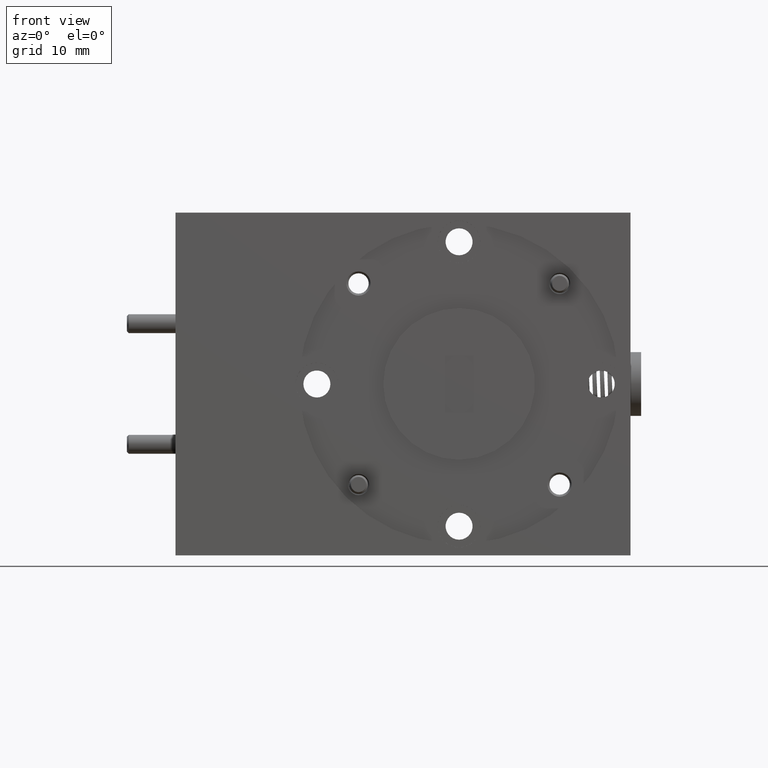
[diagram: clean part render]
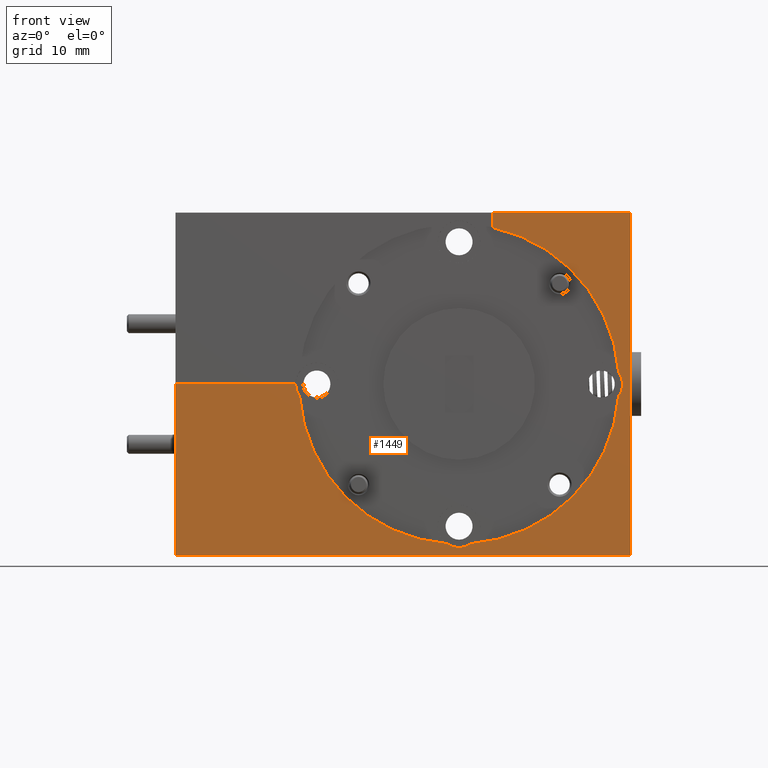
[diagram: same view with one face highlighted and labeled with its STEP entity id]
A machine part, front view. The second image highlights one B-rep face of the part: STEP entity #1449.
In plain terms, the highlighted planar face has unit normal (0, 1, 0).
Its self-contained STEP definition (entity closure, byte-faithful):
#192 = CARTESIAN_POINT ( 'NONE',  ( 0.4090450000000002700, -0.5649999999999999500, -0.04034337585031807400 ) ) ;
#217 = VERTEX_POINT ( 'NONE', #2755 ) ;
#246 = DIRECTION ( 'NONE',  ( -0.0000000000000000000, -0.0000000000000000000, -1.000000000000000000 ) ) ;
#464 = VERTEX_POINT ( 'NONE', #5726 ) ;
#688 = DIRECTION ( 'NONE',  ( 0.0000000000000000000, 0.0000000000000000000, -1.000000000000000000 ) ) ;
#953 = EDGE_CURVE ( 'NONE', #15122, #464, #16117, .T. ) ;
#1023 = AXIS2_PLACEMENT_3D ( 'NONE', #4147, #6903, #15198 ) ;
#1221 = DIRECTION ( 'NONE',  ( 0.0000000000000000000, 1.208782298081532700E-016, -1.000000000000000000 ) ) ;
#1271 = EDGE_CURVE ( 'NONE', #3174, #1623, #17130, .T. ) ;
#1397 = ORIENTED_EDGE ( 'NONE', *, *, #16337, .F. ) ;
#1449 = ADVANCED_FACE ( 'NONE', ( #9045 ), #17376, .F. ) ;
#1539 = ORIENTED_EDGE ( 'NONE', *, *, #3060, .F. ) ;
#1623 = VERTEX_POINT ( 'NONE', #8350 ) ;
#1685 = CARTESIAN_POINT ( 'NONE',  ( 1.460955000000000000, -0.5649999999999999500, 0.04034337585031770600 ) ) ;
#1728 = LINE ( 'NONE', #2541, #10920 ) ;
#1887 = DIRECTION ( 'NONE',  ( 0.0000000000000000000, 0.0000000000000000000, -1.000000000000000000 ) ) ;
#2201 = EDGE_CURVE ( 'NONE', #1623, #16250, #6027, .T. ) ;
#2245 = LINE ( 'NONE', #5926, #10604 ) ;
#2370 = ORIENTED_EDGE ( 'NONE', *, *, #14884, .F. ) ;
#2467 = VERTEX_POINT ( 'NONE', #11592 ) ;
#2541 = CARTESIAN_POINT ( 'NONE',  ( 1.500000000000000200, -0.5650000000000001700, 0.5649999999999997200 ) ) ;
#2613 = VERTEX_POINT ( 'NONE', #17426 ) ;
#2645 = LINE ( 'NONE', #5174, #16760 ) ;
#2755 = CARTESIAN_POINT ( 'NONE',  ( 0.8946566241496823900, -0.5649999999999999500, -0.5259549999999998400 ) ) ;
#2857 = EDGE_CURVE ( 'NONE', #15033, #2613, #13492, .T. ) ;
#3060 = EDGE_CURVE ( 'NONE', #6665, #217, #12631, .T. ) ;
#3161 = EDGE_CURVE ( 'NONE', #6595, #14634, #1728, .T. ) ;
#3174 = VERTEX_POINT ( 'NONE', #11026 ) ;
#3314 = AXIS2_PLACEMENT_3D ( 'NONE', #10655, #12096, #14658 ) ;
#3619 = ORIENTED_EDGE ( 'NONE', *, *, #13398, .T. ) ;
#3675 = AXIS2_PLACEMENT_3D ( 'NONE', #16726, #14080, #1887 ) ;
#3906 = VERTEX_POINT ( 'NONE', #7852 ) ;
#3934 = ORIENTED_EDGE ( 'NONE', *, *, #2201, .F. ) ;
#4147 = CARTESIAN_POINT ( 'NONE',  ( 1.403750000000000100, -0.5649999999999999500, 0.0000000000000000000 ) ) ;
#4160 = DIRECTION ( 'NONE',  ( 0.0000000000000000000, 0.0000000000000000000, -1.000000000000000000 ) ) ;
#4720 = DIRECTION ( 'NONE',  ( 0.0000000000000000000, -1.000000000000000000, 0.0000000000000000000 ) ) ;
#4755 = AXIS2_PLACEMENT_3D ( 'NONE', #15588, #4720, #688 ) ;
#5129 = CARTESIAN_POINT ( 'NONE',  ( 1.044999999999999900, -0.5649999999999999500, -0.5649999999999999500 ) ) ;
#5174 = CARTESIAN_POINT ( 'NONE',  ( 0.1600000000000000000, -0.5649999999999999500, -0.5649999999999999500 ) ) ;
#5256 = DIRECTION ( 'NONE',  ( -0.0000000000000000000, 1.208782298081532700E-016, -1.000000000000000000 ) ) ;
#5564 = CARTESIAN_POINT ( 'NONE',  ( 0.9350000000000002800, -0.5649999999999999500, -0.4687500000000000000 ) ) ;
#5704 = CIRCLE ( 'NONE', #4755, 0.07000000000000013200 ) ;
#5726 = CARTESIAN_POINT ( 'NONE',  ( 1.044999999999999900, -0.5649999999999999500, 0.5159033339686806000 ) ) ;
#5870 = DIRECTION ( 'NONE',  ( -1.000000000000000000, -0.0000000000000000000, -0.0000000000000000000 ) ) ;
#5926 = CARTESIAN_POINT ( 'NONE',  ( 1.274999999999999900, -0.5650000000000001700, 0.5649999999999997200 ) ) ;
#6027 = CIRCLE ( 'NONE', #1023, 0.06999999999999999300 ) ;
#6331 = ORIENTED_EDGE ( 'NONE', *, *, #2857, .T. ) ;
#6595 = VERTEX_POINT ( 'NONE', #12155 ) ;
#6665 = VERTEX_POINT ( 'NONE', #192 ) ;
#6735 = CARTESIAN_POINT ( 'NONE',  ( 0.9350000000000001600, -0.5649999999999999500, 0.0000000000000000000 ) ) ;
#6864 = CIRCLE ( 'NONE', #3675, 0.07000000000000000700 ) ;
#6903 = DIRECTION ( 'NONE',  ( 0.0000000000000000000, -1.000000000000000000, 0.0000000000000000000 ) ) ;
#6974 = CARTESIAN_POINT ( 'NONE',  ( 0.0000000000000000000, -0.5649999999999999500, -0.5649999999999999500 ) ) ;
#7595 = CIRCLE ( 'NONE', #7837, 0.07000000000000000700 ) ;
#7613 = CIRCLE ( 'NONE', #12069, 0.5274999999999998600 ) ;
#7837 = AXIS2_PLACEMENT_3D ( 'NONE', #5564, #8356, #13848 ) ;
#7852 = CARTESIAN_POINT ( 'NONE',  ( 0.9350000000000002800, -0.5649999999999999500, -0.5387500000000000600 ) ) ;
#8123 = ORIENTED_EDGE ( 'NONE', *, *, #3161, .F. ) ;
#8350 = CARTESIAN_POINT ( 'NONE',  ( 1.460955000000000000, -0.5649999999999999500, -0.04034337585031770600 ) ) ;
#8356 = DIRECTION ( 'NONE',  ( 0.0000000000000000000, -1.000000000000000000, 0.0000000000000000000 ) ) ;
#8589 = CARTESIAN_POINT ( 'NONE',  ( 0.9350000000000001600, -0.5649999999999999500, 0.0000000000000000000 ) ) ;
#8747 = LINE ( 'NONE', #6974, #10451 ) ;
#8816 = DIRECTION ( 'NONE',  ( 0.0000000000000000000, -1.000000000000000000, 0.0000000000000000000 ) ) ;
#8882 = DIRECTION ( 'NONE',  ( -1.000000000000000000, -0.0000000000000000000, -0.0000000000000000000 ) ) ;
#9045 = FACE_OUTER_BOUND ( 'NONE', #12562, .T. ) ;
#9533 = ORIENTED_EDGE ( 'NONE', *, *, #15961, .F. ) ;
#9603 = DIRECTION ( 'NONE',  ( 0.0000000000000000000, -1.000000000000000000, 0.0000000000000000000 ) ) ;
#9838 = CARTESIAN_POINT ( 'NONE',  ( 0.3962500000000001000, -0.5649999999999999500, -1.516480271171051900E-032 ) ) ;
#10191 = EDGE_CURVE ( 'NONE', #14634, #2467, #2645, .T. ) ;
#10451 = VECTOR ( 'NONE', #246, 39.37007874015748100 ) ;
#10604 = VECTOR ( 'NONE', #5870, 39.37007874015748100 ) ;
#10655 = CARTESIAN_POINT ( 'NONE',  ( 0.1600000000000000000, -0.5649999999999999500, -0.5649999999999999500 ) ) ;
#10877 = ORIENTED_EDGE ( 'NONE', *, *, #1271, .F. ) ;
#10920 = VECTOR ( 'NONE', #1221, 39.37007874015748100 ) ;
#11026 = CARTESIAN_POINT ( 'NONE',  ( 0.9753433758503181600, -0.5649999999999999500, -0.5259549999999998400 ) ) ;
#11219 = ORIENTED_EDGE ( 'NONE', *, *, #953, .T. ) ;
#11501 = CARTESIAN_POINT ( 'NONE',  ( 1.500000000000000200, -0.5649999999999999500, -0.5649999999999999500 ) ) ;
#11592 = CARTESIAN_POINT ( 'NONE',  ( 0.0000000000000000000, -0.5649999999999999500, -0.5649999999999999500 ) ) ;
#11751 = ORIENTED_EDGE ( 'NONE', *, *, #12883, .F. ) ;
#11993 = VECTOR ( 'NONE', #8882, 39.37007874015748100 ) ;
#12069 = AXIS2_PLACEMENT_3D ( 'NONE', #6735, #14973, #4160 ) ;
#12096 = DIRECTION ( 'NONE',  ( 0.0000000000000000000, 1.000000000000000000, 0.0000000000000000000 ) ) ;
#12155 = CARTESIAN_POINT ( 'NONE',  ( 1.500000000000000200, -0.5650000000000001700, 0.5649999999999997200 ) ) ;
#12336 = CARTESIAN_POINT ( 'NONE',  ( 0.9350000000000001600, -0.5649999999999999500, 0.0000000000000000000 ) ) ;
#12562 = EDGE_LOOP ( 'NONE', ( #1539, #1397, #6331, #3619, #16418, #8123, #16543, #11219, #2370, #3934, #10877, #9533, #11751 ) ) ;
#12631 = CIRCLE ( 'NONE', #16650, 0.5274999999999998600 ) ;
#12698 = CARTESIAN_POINT ( 'NONE',  ( 1.044999999999999900, -0.5650000000000001700, 0.5649999999999997200 ) ) ;
#12883 = EDGE_CURVE ( 'NONE', #217, #3906, #6864, .T. ) ;
#13398 = EDGE_CURVE ( 'NONE', #2613, #2467, #8747, .T. ) ;
#13492 = LINE ( 'NONE', #16981, #11993 ) ;
#13772 = VECTOR ( 'NONE', #5256, 39.37007874015748100 ) ;
#13848 = DIRECTION ( 'NONE',  ( 0.0000000000000000000, 0.0000000000000000000, -1.000000000000000000 ) ) ;
#14080 = DIRECTION ( 'NONE',  ( 0.0000000000000000000, -1.000000000000000000, 0.0000000000000000000 ) ) ;
#14185 = DIRECTION ( 'NONE',  ( 0.0000000000000000000, 0.0000000000000000000, -1.000000000000000000 ) ) ;
#14634 = VERTEX_POINT ( 'NONE', #11501 ) ;
#14658 = DIRECTION ( 'NONE',  ( 0.0000000000000000000, -0.0000000000000000000, 1.000000000000000000 ) ) ;
#14787 = DIRECTION ( 'NONE',  ( 0.0000000000000000000, 0.0000000000000000000, -1.000000000000000000 ) ) ;
#14884 = EDGE_CURVE ( 'NONE', #16250, #464, #7613, .T. ) ;
#14973 = DIRECTION ( 'NONE',  ( 0.0000000000000000000, -1.000000000000000000, 0.0000000000000000000 ) ) ;
#15033 = VERTEX_POINT ( 'NONE', #9838 ) ;
#15122 = VERTEX_POINT ( 'NONE', #12698 ) ;
#15198 = DIRECTION ( 'NONE',  ( 0.0000000000000000000, 0.0000000000000000000, -1.000000000000000000 ) ) ;
#15588 = CARTESIAN_POINT ( 'NONE',  ( 0.4662500000000002800, -0.5649999999999999500, -5.740531871003218700E-017 ) ) ;
#15961 = EDGE_CURVE ( 'NONE', #3906, #3174, #7595, .T. ) ;
#16117 = LINE ( 'NONE', #5129, #13772 ) ;
#16250 = VERTEX_POINT ( 'NONE', #1685 ) ;
#16267 = EDGE_CURVE ( 'NONE', #6595, #15122, #2245, .T. ) ;
#16337 = EDGE_CURVE ( 'NONE', #15033, #6665, #5704, .T. ) ;
#16418 = ORIENTED_EDGE ( 'NONE', *, *, #10191, .F. ) ;
#16543 = ORIENTED_EDGE ( 'NONE', *, *, #16267, .T. ) ;
#16650 = AXIS2_PLACEMENT_3D ( 'NONE', #12336, #9603, #14787 ) ;
#16726 = CARTESIAN_POINT ( 'NONE',  ( 0.9350000000000002800, -0.5649999999999999500, -0.4687500000000000000 ) ) ;
#16760 = VECTOR ( 'NONE', #17254, 39.37007874015748100 ) ;
#16981 = CARTESIAN_POINT ( 'NONE',  ( 0.1600000000000000000, -0.5649999999999999500, 0.0000000000000000000 ) ) ;
#17031 = AXIS2_PLACEMENT_3D ( 'NONE', #8589, #8816, #14185 ) ;
#17130 = CIRCLE ( 'NONE', #17031, 0.5274999999999998600 ) ;
#17254 = DIRECTION ( 'NONE',  ( -1.000000000000000000, -0.0000000000000000000, -0.0000000000000000000 ) ) ;
#17376 = PLANE ( 'NONE',  #3314 ) ;
#17426 = CARTESIAN_POINT ( 'NONE',  ( 0.0000000000000000000, -0.5649999999999999500, 0.0000000000000000000 ) ) ;